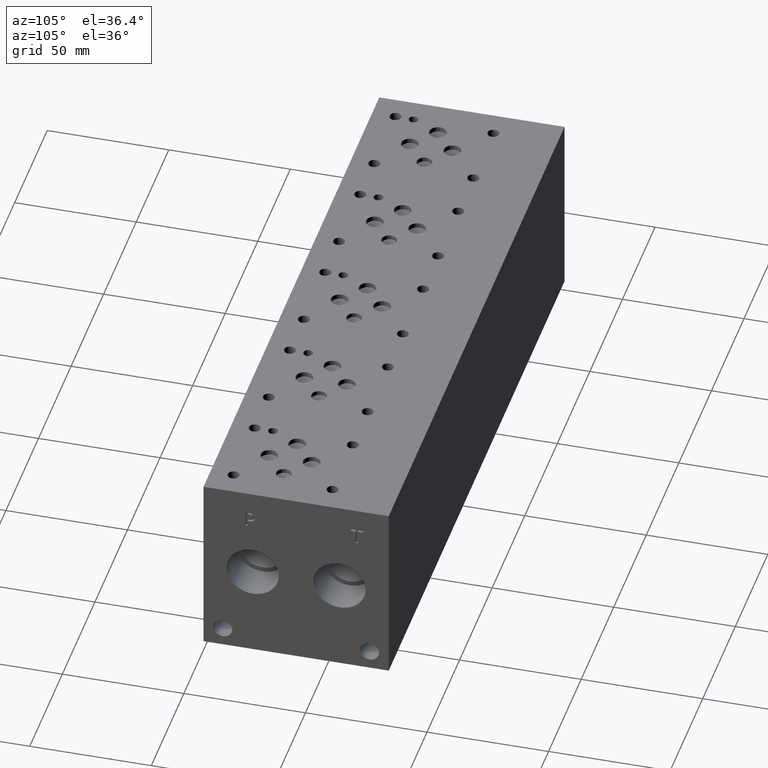
[diagram: clean part render]
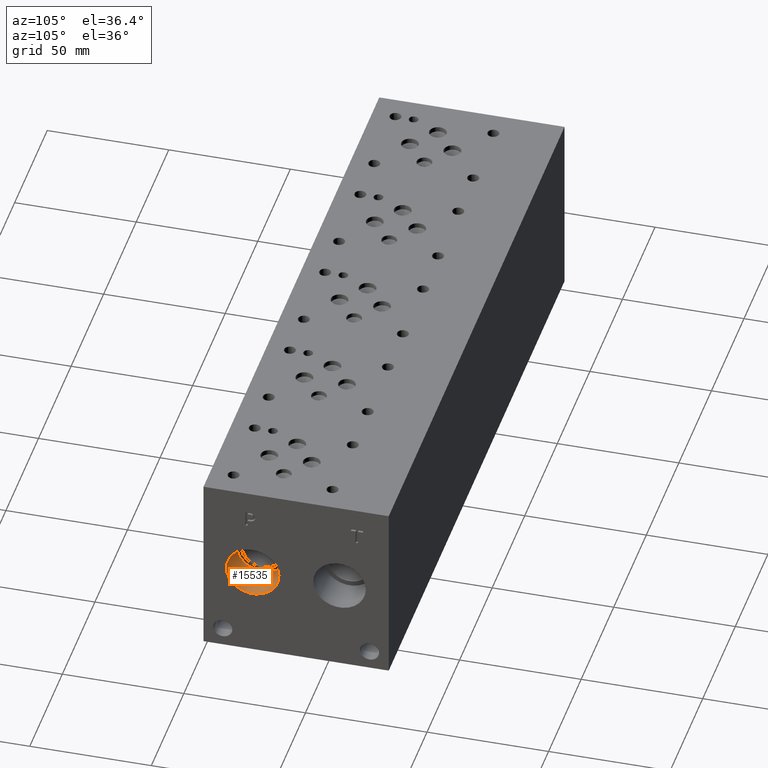
[diagram: same view with one face highlighted and labeled with its STEP entity id]
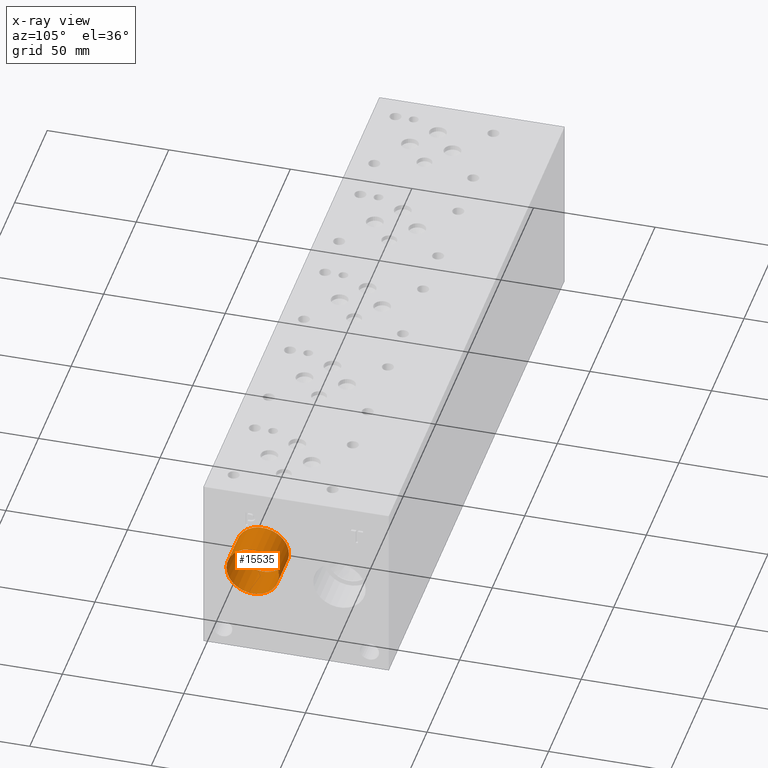
[diagram: x-ray of the same camera — body ghosted, the highlighted face saturated]
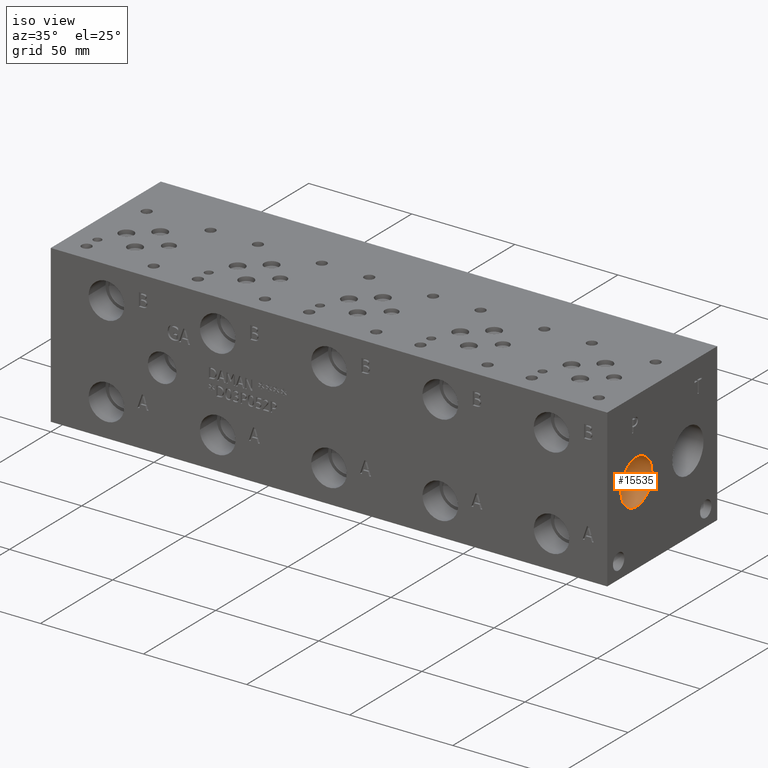
[diagram: same view with one face highlighted and labeled with its STEP entity id]
A machine part, auxiliary view. The second image highlights one B-rep face of the part: STEP entity #15535.
The next image is the same camera in x-ray: the body ghosted, the highlighted face saturated — about 0% of this face is hidden behind the body in this view.
A second angle (iso view) of the same face is appended — the face is thin or edge-on in the first view.
In plain terms, the highlighted cylindrical surface (bore or boss wall) has radius 10.795 mm, axis along (1, 0, 0).
Its self-contained STEP definition (entity closure, byte-faithful):
#20=CYLINDRICAL_SURFACE('',#16218,10.795);
#203=CIRCLE('',#15989,10.795);
#204=CIRCLE('',#15990,10.795);
#236=CIRCLE('',#16215,10.795);
#237=CIRCLE('',#16216,10.795);
#1773=FACE_OUTER_BOUND('',#2666,.T.);
#2666=EDGE_LOOP('',(#13137,#13138,#13139,#13140,#13141,#13142));
#4180=LINE('',#26135,#5575);
#5575=VECTOR('',#18913,10.795);
#6877=VERTEX_POINT('',#23737);
#6878=VERTEX_POINT('',#23738);
#7275=VERTEX_POINT('',#26128);
#7276=VERTEX_POINT('',#26129);
#8698=EDGE_CURVE('',#6877,#6878,#203,.T.);
#8699=EDGE_CURVE('',#6878,#6877,#204,.T.);
#9342=EDGE_CURVE('',#7275,#7276,#236,.T.);
#9343=EDGE_CURVE('',#7276,#7275,#237,.T.);
#9345=EDGE_CURVE('',#6878,#7276,#4180,.T.);
#13137=ORIENTED_EDGE('',*,*,#8698,.F.);
#13138=ORIENTED_EDGE('',*,*,#8699,.F.);
#13139=ORIENTED_EDGE('',*,*,#9345,.T.);
#13140=ORIENTED_EDGE('',*,*,#9342,.F.);
#13141=ORIENTED_EDGE('',*,*,#9343,.F.);
#13142=ORIENTED_EDGE('',*,*,#9345,.F.);
#15535=ADVANCED_FACE('',(#1773),#20,.F.);
#15989=AXIS2_PLACEMENT_3D('',#23739,#17982,#17983);
#15990=AXIS2_PLACEMENT_3D('',#23740,#17984,#17985);
#16215=AXIS2_PLACEMENT_3D('',#26130,#18905,#18906);
#16216=AXIS2_PLACEMENT_3D('',#26131,#18907,#18908);
#16218=AXIS2_PLACEMENT_3D('',#26134,#18911,#18912);
#17982=DIRECTION('center_axis',(-1.,0.,0.));
#17983=DIRECTION('ref_axis',(0.,1.,0.));
#17984=DIRECTION('center_axis',(-1.,0.,0.));
#17985=DIRECTION('ref_axis',(0.,1.,0.));
#18905=DIRECTION('center_axis',(1.,0.,0.));
#18906=DIRECTION('ref_axis',(0.,1.,0.));
#18907=DIRECTION('center_axis',(1.,0.,0.));
#18908=DIRECTION('ref_axis',(0.,1.,0.));
#18911=DIRECTION('center_axis',(1.,0.,0.));
#18912=DIRECTION('ref_axis',(0.,1.,0.));
#18913=DIRECTION('',(-1.,0.,0.));
#23737=CARTESIAN_POINT('',(269.875,31.0388,38.1));
#23738=CARTESIAN_POINT('',(269.875,9.4488,38.1));
#23739=CARTESIAN_POINT('Origin',(269.875,20.2438,38.1));
#23740=CARTESIAN_POINT('Origin',(269.875,20.2438,38.1));
#26128=CARTESIAN_POINT('',(254.508,31.0388,38.1));
#26129=CARTESIAN_POINT('',(254.508,9.4488,38.1));
#26130=CARTESIAN_POINT('Origin',(254.508,20.2438,38.1));
#26131=CARTESIAN_POINT('Origin',(254.508,20.2438,38.1));
#26134=CARTESIAN_POINT('Origin',(262.1915,20.2438,38.1));
#26135=CARTESIAN_POINT('',(262.1915,9.4488,38.1));